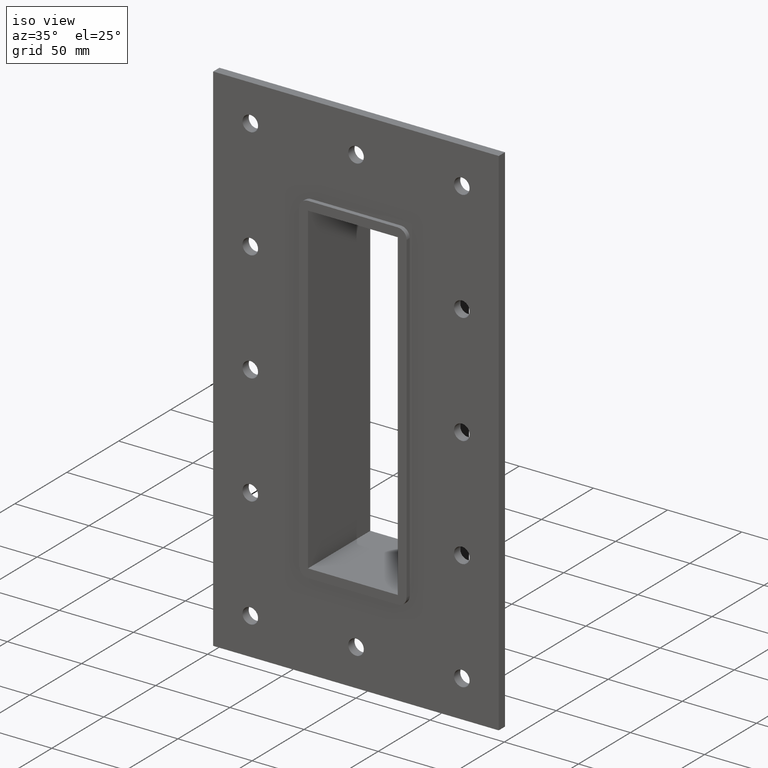
[diagram: clean part render]
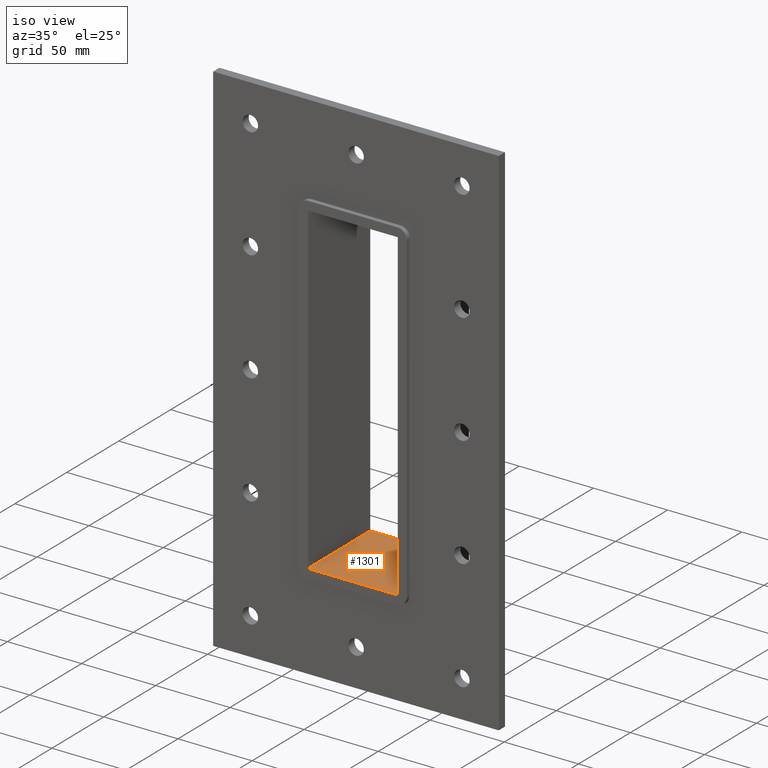
[diagram: same view with one face highlighted and labeled with its STEP entity id]
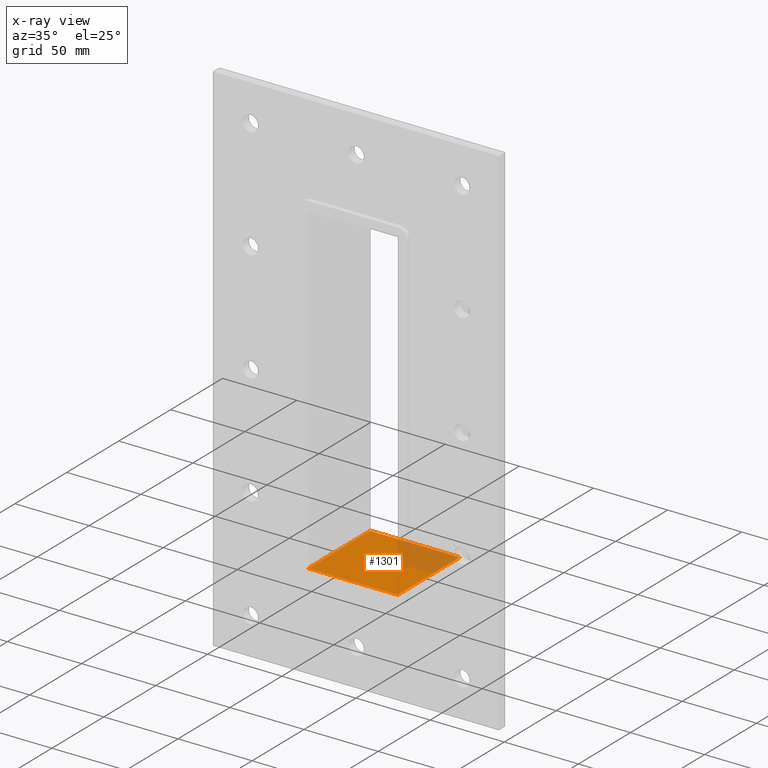
[diagram: x-ray of the same camera — body ghosted, the highlighted face saturated]
A machine part, iso view. The second image highlights one B-rep face of the part: STEP entity #1301.
The next image is the same camera in x-ray: the body ghosted, the highlighted face saturated — about 24% of this face is hidden behind the body in this view.
In plain terms, the highlighted planar face has unit normal (0, 0, -1).
Its self-contained STEP definition (entity closure, byte-faithful):
#769=CARTESIAN_POINT('',(-30.250000000000004,-3.0,-109.00000000000003));
#770=VERTEX_POINT('',#769);
#771=CARTESIAN_POINT('',(-30.250000000000004,57.0,-109.00000000000003));
#772=VERTEX_POINT('',#771);
#773=CARTESIAN_POINT('',(-30.250000000000004,-3.0,-109.00000000000003));
#774=DIRECTION('',(0.0,1.0,0.0));
#775=VECTOR('',#774,60.0);
#776=LINE('',#773,#775);
#777=EDGE_CURVE('',#770,#772,#776,.T.);
#1122=CARTESIAN_POINT('',(30.250000000000004,-3.0,-109.00000000000003));
#1123=VERTEX_POINT('',#1122);
#1130=CARTESIAN_POINT('',(30.250000000000004,-3.0,-109.00000000000003));
#1131=DIRECTION('',(-1.0,0.0,0.0));
#1132=VECTOR('',#1131,60.500000000000014);
#1133=LINE('',#1130,#1132);
#1134=EDGE_CURVE('',#1123,#770,#1133,.T.);
#1242=CARTESIAN_POINT('',(30.250000000000004,57.0,-109.00000000000003));
#1243=VERTEX_POINT('',#1242);
#1244=CARTESIAN_POINT('',(30.250000000000004,56.999999999999993,-109.00000000000003));
#1245=DIRECTION('',(0.0,-1.0,0.0));
#1246=VECTOR('',#1245,59.999999999999993);
#1247=LINE('',#1244,#1246);
#1248=EDGE_CURVE('',#1243,#1123,#1247,.T.);
#1285=CARTESIAN_POINT('',(30.250000000000004,0.0,-109.00000000000003));
#1286=DIRECTION('',(0.0,0.0,-1.0));
#1287=DIRECTION('',(-1.0,0.0,0.0));
#1288=AXIS2_PLACEMENT_3D('',#1285,#1286,#1287);
#1289=PLANE('',#1288);
#1290=ORIENTED_EDGE('',*,*,#777,.F.);
#1291=ORIENTED_EDGE('',*,*,#1134,.F.);
#1292=ORIENTED_EDGE('',*,*,#1248,.F.);
#1293=CARTESIAN_POINT('',(-30.250000000000007,57.0,-109.00000000000003));
#1294=DIRECTION('',(1.0,0.0,0.0));
#1295=VECTOR('',#1294,60.500000000000014);
#1296=LINE('',#1293,#1295);
#1297=EDGE_CURVE('',#772,#1243,#1296,.T.);
#1298=ORIENTED_EDGE('',*,*,#1297,.F.);
#1299=EDGE_LOOP('',(#1290,#1291,#1292,#1298));
#1300=FACE_OUTER_BOUND('',#1299,.T.);
#1301=ADVANCED_FACE('',(#1300),#1289,.F.);